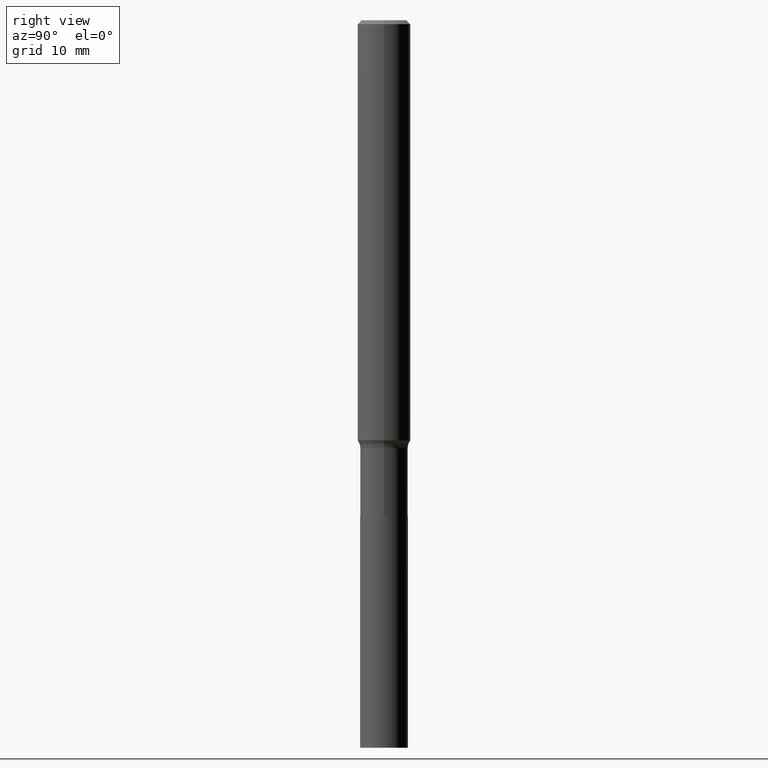
[diagram: clean part render]
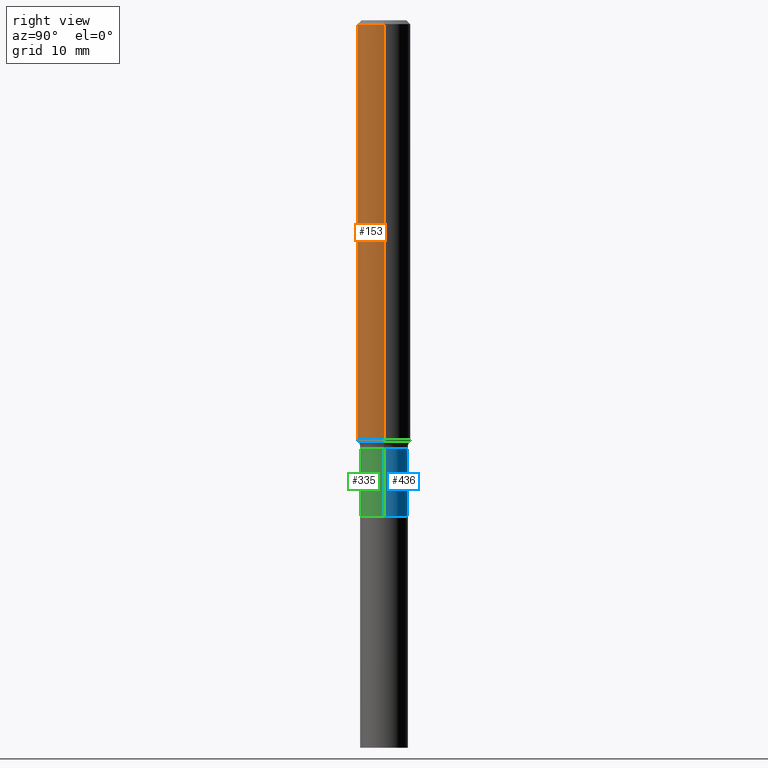
[diagram: same view with three faces highlighted in distinct colors, each labeled with its STEP entity id]
A machine part, right view with three faces highlighted in distinct colors.
Their STEP definitions:

[orange] entity #153 — the highlighted cylindrical surface (edge-blend (fillet) strip) has radius 4.0005 mm, axis along (-0, 0, 1).
#9 = DIRECTION ( 'NONE',  ( -2.445468806185136597E-29, 3.491481338843145583E-15, 1.000000000000000000 ) ) ;
#18 = AXIS2_PLACEMENT_3D ( 'NONE', #127, #9, #21 ) ;
#21 = DIRECTION ( 'NONE',  ( 1.000000000000000000, -6.982962677686267499E-15, 4.876176775795935232E-29 ) ) ;
#30 = DIRECTION ( 'NONE',  ( 1.000000000000000000, -6.982962677686272233E-15, 0.000000000000000000 ) ) ;
#33 = EDGE_CURVE ( 'NONE', #156, #220, #56, .T. ) ;
#42 = CIRCLE ( 'NONE', #307, 0.1575000000000003064 ) ;
#56 = LINE ( 'NONE', #162, #106 ) ;
#57 = FACE_OUTER_BOUND ( 'NONE', #263, .T. ) ;
#84 = CYLINDRICAL_SURFACE ( 'NONE', #18, 0.1575000000000001676 ) ;
#88 = VECTOR ( 'NONE', #128, 39.37007874015748143 ) ;
#106 = VECTOR ( 'NONE', #131, 39.37007874015748143 ) ;
#121 = LINE ( 'NONE', #196, #88 ) ;
#127 = CARTESIAN_POINT ( 'NONE',  ( 0.000000000000000000, 0.000000000000000000, 0.000000000000000000 ) ) ;
#128 = DIRECTION ( 'NONE',  ( -2.445468806185136877E-29, 3.491481338843145188E-15, 1.000000000000000000 ) ) ;
#131 = DIRECTION ( 'NONE',  ( -2.445468806185136877E-29, 3.491481338843145188E-15, 1.000000000000000000 ) ) ;
#153 = ADVANCED_FACE ( 'NONE', ( #57 ), #84, .T. ) ;
#156 = VERTEX_POINT ( 'NONE', #324 ) ;
#162 = CARTESIAN_POINT ( 'NONE',  ( -0.1575000000000001676, 1.119104808822158984E-15, -7.747322767151485392E-30 ) ) ;
#196 = CARTESIAN_POINT ( 'NONE',  ( 0.1575000000000001676, -1.099816621735588269E-15, 7.679978421878606441E-30 ) ) ;
#220 = VERTEX_POINT ( 'NONE', #466 ) ;
#248 = DIRECTION ( 'NONE',  ( 1.000000000000000000, -6.982962677686265922E-15, 0.000000000000000000 ) ) ;
#249 = DIRECTION ( 'NONE',  ( -2.445468806185136597E-29, 3.491481338843145583E-15, 1.000000000000000000 ) ) ;
#263 = EDGE_LOOP ( 'NONE', ( #374, #468, #449, #438 ) ) ;
#269 = EDGE_CURVE ( 'NONE', #220, #405, #389, .T. ) ;
#273 = CARTESIAN_POINT ( 'NONE',  ( 0.1575000000000000011, -1.182302868365756679E-15, -0.02362500000000014588 ) ) ;
#307 = AXIS2_PLACEMENT_3D ( 'NONE', #410, #372, #30 ) ;
#324 = CARTESIAN_POINT ( 'NONE',  ( -0.1575000000000002232, -7.611467020109086398E-15, -2.500535154463693122 ) ) ;
#345 = AXIS2_PLACEMENT_3D ( 'NONE', #464, #249, #248 ) ;
#355 = EDGE_CURVE ( 'NONE', #156, #443, #42, .T. ) ;
#372 = DIRECTION ( 'NONE',  ( -2.445468806185136597E-29, 3.491481338843145583E-15, 1.000000000000000000 ) ) ;
#374 = ORIENTED_EDGE ( 'NONE', *, *, #33, .F. ) ;
#383 = CARTESIAN_POINT ( 'NONE',  ( 0.1575000000000002232, -9.830388450666835426E-15, -2.500535154463693122 ) ) ;
#388 = EDGE_CURVE ( 'NONE', #443, #405, #121, .T. ) ;
#389 = CIRCLE ( 'NONE', #345, 0.1575000000000000011 ) ;
#405 = VERTEX_POINT ( 'NONE', #273 ) ;
#410 = CARTESIAN_POINT ( 'NONE',  ( 6.114980719010292811E-29, -8.730571828931245579E-15, -2.500535154463693122 ) ) ;
#438 = ORIENTED_EDGE ( 'NONE', *, *, #269, .F. ) ;
#443 = VERTEX_POINT ( 'NONE', #383 ) ;
#449 = ORIENTED_EDGE ( 'NONE', *, *, #388, .T. ) ;
#464 = CARTESIAN_POINT ( 'NONE',  ( 5.777420054612421104E-31, -8.248624663016984002E-17, -0.02362500000000014588 ) ) ;
#466 = CARTESIAN_POINT ( 'NONE',  ( -0.1575000000000000011, -3.287424228958547123E-15, -0.02362500000000014588 ) ) ;
#468 = ORIENTED_EDGE ( 'NONE', *, *, #355, .T. ) ;

[blue] entity #436 — the highlighted cylindrical surface (edge-blend (fillet) strip) has radius 3.6004 mm, axis along (-0, 0, 1).
#1 = AXIS2_PLACEMENT_3D ( 'NONE', #135, #280, #419 ) ;
#8 = LINE ( 'NONE', #165, #253 ) ;
#32 = VERTEX_POINT ( 'NONE', #414 ) ;
#35 = VERTEX_POINT ( 'NONE', #274 ) ;
#63 = CARTESIAN_POINT ( 'NONE',  ( 0.1417499999999999871, -9.898349595620284167E-16, 6.911980579690738790E-30 ) ) ;
#64 = CYLINDRICAL_SURFACE ( 'NONE', #320, 0.1417499999999999871 ) ;
#80 = CIRCLE ( 'NONE', #164, 0.1417499999999999594 ) ;
#86 = EDGE_CURVE ( 'NONE', #35, #32, #450, .T. ) ;
#101 = DIRECTION ( 'NONE',  ( 1.000000000000000000, -6.982962677686261189E-15, 0.000000000000000000 ) ) ;
#110 = ORIENTED_EDGE ( 'NONE', *, *, #86, .F. ) ;
#113 = EDGE_LOOP ( 'NONE', ( #151, #252, #407, #110 ) ) ;
#135 = CARTESIAN_POINT ( 'NONE',  ( 7.219513009619761960E-29, -1.030755120853273430E-14, -2.952200000000000379 ) ) ;
#143 = FACE_OUTER_BOUND ( 'NONE', #113, .T. ) ;
#151 = ORIENTED_EDGE ( 'NONE', *, *, #462, .T. ) ;
#164 = AXIS2_PLACEMENT_3D ( 'NONE', #448, #288, #101 ) ;
#165 = CARTESIAN_POINT ( 'NONE',  ( -0.1417499999999999871, 1.007194327939941922E-15, -6.972590490436329146E-30 ) ) ;
#172 = EDGE_CURVE ( 'NONE', #32, #289, #80, .T. ) ;
#174 = CIRCLE ( 'NONE', #1, 0.1417500000000000149 ) ;
#176 = DIRECTION ( 'NONE',  ( -2.445468806185136597E-29, 3.491481338843145583E-15, 1.000000000000000000 ) ) ;
#181 = CARTESIAN_POINT ( 'NONE',  ( -0.1417500000000000426, -8.595077650146476144E-15, -2.952200000000000379 ) ) ;
#207 = CARTESIAN_POINT ( 'NONE',  ( 0.000000000000000000, 0.000000000000000000, 0.000000000000000000 ) ) ;
#214 = VERTEX_POINT ( 'NONE', #181 ) ;
#252 = ORIENTED_EDGE ( 'NONE', *, *, #368, .T. ) ;
#253 = VECTOR ( 'NONE', #400, 39.37007874015748143 ) ;
#274 = CARTESIAN_POINT ( 'NONE',  ( 0.1417500000000000149, -1.129738616809476390E-14, -2.952200000000000379 ) ) ;
#280 = DIRECTION ( 'NONE',  ( -2.445468806185136597E-29, 3.491481338843145583E-15, 1.000000000000000000 ) ) ;
#288 = DIRECTION ( 'NONE',  ( -2.445468806185136597E-29, 3.491481338843145583E-15, 1.000000000000000000 ) ) ;
#289 = VERTEX_POINT ( 'NONE', #366 ) ;
#320 = AXIS2_PLACEMENT_3D ( 'NONE', #207, #176, #459 ) ;
#366 = CARTESIAN_POINT ( 'NONE',  ( -0.1417499999999999594, -8.595077650146477722E-15, -2.548200000000000021 ) ) ;
#368 = EDGE_CURVE ( 'NONE', #214, #289, #8, .T. ) ;
#400 = DIRECTION ( 'NONE',  ( -2.445468806185136877E-29, 3.491481338843145188E-15, 1.000000000000000000 ) ) ;
#407 = ORIENTED_EDGE ( 'NONE', *, *, #172, .F. ) ;
#414 = CARTESIAN_POINT ( 'NONE',  ( 0.1417499999999999594, -9.886827707202130642E-15, -2.548200000000000021 ) ) ;
#419 = DIRECTION ( 'NONE',  ( 1.000000000000000000, -6.982962677686272233E-15, 0.000000000000000000 ) ) ;
#423 = DIRECTION ( 'NONE',  ( -2.445468806185136877E-29, 3.491481338843145188E-15, 1.000000000000000000 ) ) ;
#436 = ADVANCED_FACE ( 'NONE', ( #143 ), #64, .T. ) ;
#448 = CARTESIAN_POINT ( 'NONE',  ( 6.231543611920964461E-29, -8.896992747640102620E-15, -2.548200000000000021 ) ) ;
#450 = LINE ( 'NONE', #63, #451 ) ;
#451 = VECTOR ( 'NONE', #423, 39.37007874015748143 ) ;
#459 = DIRECTION ( 'NONE',  ( 1.000000000000000000, -6.982962677686268288E-15, 4.876176775795936353E-29 ) ) ;
#462 = EDGE_CURVE ( 'NONE', #35, #214, #174, .T. ) ;

[green] entity #335 — the highlighted cylindrical surface (edge-blend (fillet) strip) has radius 3.6004 mm, axis along (-0, 0, 1).
#8 = LINE ( 'NONE', #165, #253 ) ;
#16 = CYLINDRICAL_SURFACE ( 'NONE', #170, 0.1417499999999999871 ) ;
#25 = ORIENTED_EDGE ( 'NONE', *, *, #276, .F. ) ;
#32 = VERTEX_POINT ( 'NONE', #414 ) ;
#35 = VERTEX_POINT ( 'NONE', #274 ) ;
#39 = ORIENTED_EDGE ( 'NONE', *, *, #86, .T. ) ;
#54 = FACE_OUTER_BOUND ( 'NONE', #337, .T. ) ;
#63 = CARTESIAN_POINT ( 'NONE',  ( 0.1417499999999999871, -9.898349595620284167E-16, 6.911980579690738790E-30 ) ) ;
#81 = CARTESIAN_POINT ( 'NONE',  ( 7.219513009619761960E-29, -1.030755120853273430E-14, -2.952200000000000379 ) ) ;
#86 = EDGE_CURVE ( 'NONE', #35, #32, #450, .T. ) ;
#165 = CARTESIAN_POINT ( 'NONE',  ( -0.1417499999999999871, 1.007194327939941922E-15, -6.972590490436329146E-30 ) ) ;
#168 = DIRECTION ( 'NONE',  ( -2.445468806185136597E-29, 3.491481338843145583E-15, 1.000000000000000000 ) ) ;
#169 = CIRCLE ( 'NONE', #369, 0.1417500000000000149 ) ;
#170 = AXIS2_PLACEMENT_3D ( 'NONE', #420, #168, #439 ) ;
#181 = CARTESIAN_POINT ( 'NONE',  ( -0.1417500000000000426, -8.595077650146476144E-15, -2.952200000000000379 ) ) ;
#182 = CIRCLE ( 'NONE', #404, 0.1417499999999999594 ) ;
#214 = VERTEX_POINT ( 'NONE', #181 ) ;
#253 = VECTOR ( 'NONE', #400, 39.37007874015748143 ) ;
#274 = CARTESIAN_POINT ( 'NONE',  ( 0.1417500000000000149, -1.129738616809476390E-14, -2.952200000000000379 ) ) ;
#276 = EDGE_CURVE ( 'NONE', #289, #32, #182, .T. ) ;
#289 = VERTEX_POINT ( 'NONE', #366 ) ;
#327 = EDGE_CURVE ( 'NONE', #214, #35, #169, .T. ) ;
#335 = ADVANCED_FACE ( 'NONE', ( #54 ), #16, .T. ) ;
#337 = EDGE_LOOP ( 'NONE', ( #442, #393, #39, #25 ) ) ;
#357 = DIRECTION ( 'NONE',  ( -2.445468806185136597E-29, 3.491481338843145583E-15, 1.000000000000000000 ) ) ;
#366 = CARTESIAN_POINT ( 'NONE',  ( -0.1417499999999999594, -8.595077650146477722E-15, -2.548200000000000021 ) ) ;
#368 = EDGE_CURVE ( 'NONE', #214, #289, #8, .T. ) ;
#369 = AXIS2_PLACEMENT_3D ( 'NONE', #81, #357, #454 ) ;
#393 = ORIENTED_EDGE ( 'NONE', *, *, #327, .T. ) ;
#394 = DIRECTION ( 'NONE',  ( 1.000000000000000000, -6.982962677686261189E-15, 0.000000000000000000 ) ) ;
#400 = DIRECTION ( 'NONE',  ( -2.445468806185136877E-29, 3.491481338843145188E-15, 1.000000000000000000 ) ) ;
#404 = AXIS2_PLACEMENT_3D ( 'NONE', #437, #424, #394 ) ;
#414 = CARTESIAN_POINT ( 'NONE',  ( 0.1417499999999999594, -9.886827707202130642E-15, -2.548200000000000021 ) ) ;
#420 = CARTESIAN_POINT ( 'NONE',  ( 0.000000000000000000, 0.000000000000000000, 0.000000000000000000 ) ) ;
#423 = DIRECTION ( 'NONE',  ( -2.445468806185136877E-29, 3.491481338843145188E-15, 1.000000000000000000 ) ) ;
#424 = DIRECTION ( 'NONE',  ( -2.445468806185136597E-29, 3.491481338843145583E-15, 1.000000000000000000 ) ) ;
#437 = CARTESIAN_POINT ( 'NONE',  ( 6.231543611920964461E-29, -8.896992747640102620E-15, -2.548200000000000021 ) ) ;
#439 = DIRECTION ( 'NONE',  ( 1.000000000000000000, -6.982962677686268288E-15, 4.876176775795936353E-29 ) ) ;
#442 = ORIENTED_EDGE ( 'NONE', *, *, #368, .F. ) ;
#450 = LINE ( 'NONE', #63, #451 ) ;
#451 = VECTOR ( 'NONE', #423, 39.37007874015748143 ) ;
#454 = DIRECTION ( 'NONE',  ( 1.000000000000000000, -6.982962677686272233E-15, 0.000000000000000000 ) ) ;